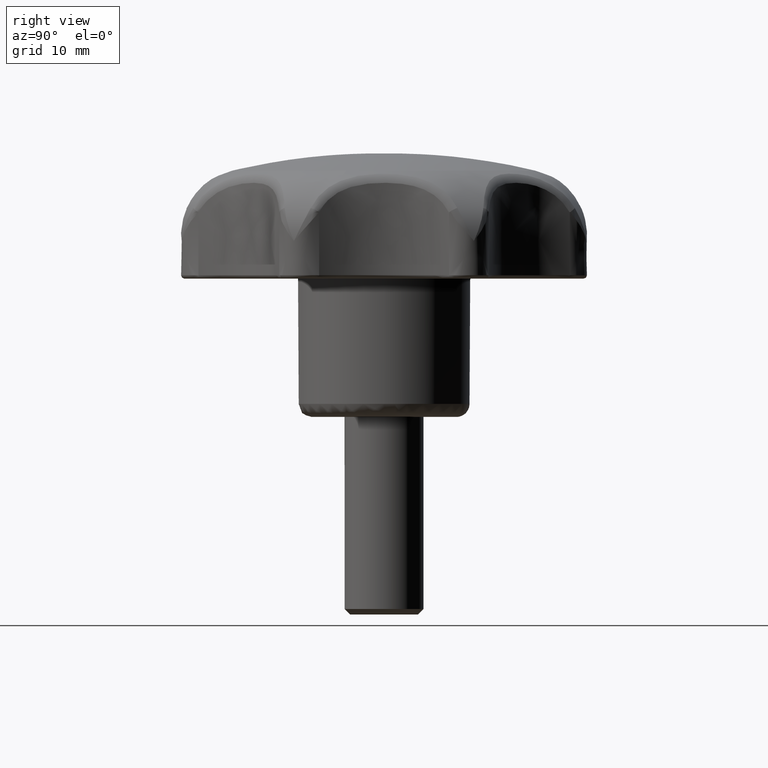
[diagram: clean part render]
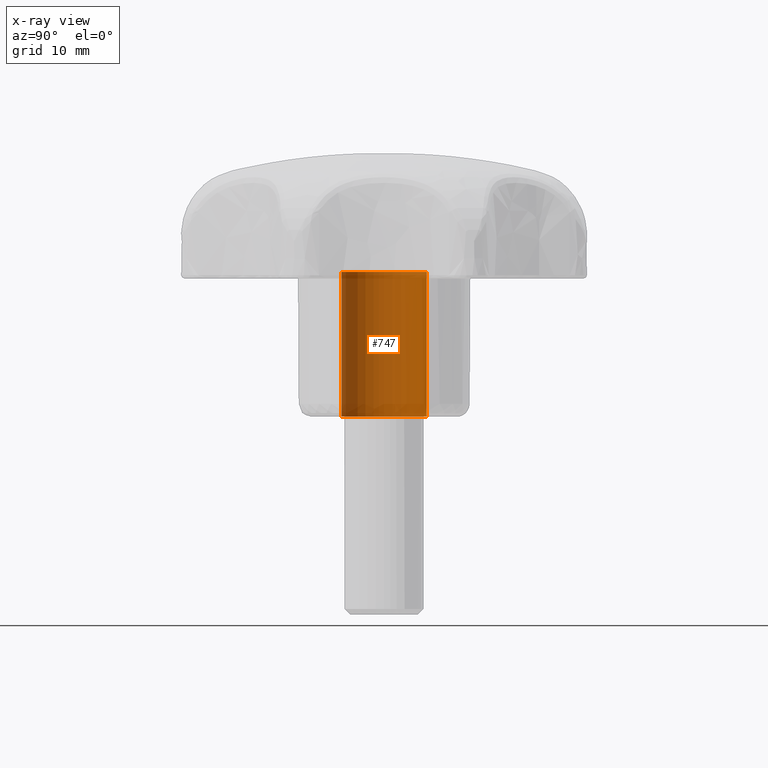
[diagram: x-ray — body ghosted, one internal face saturated and labeled with its STEP entity id]
A machine part, right view, then the same camera in x-ray: the body is ghosted and one INTERNAL B-rep face — a face not visible from any outside direction — is saturated and labeled: STEP entity #747.
In plain terms, the highlighted face is a freeform B-spline surface patch.
Its self-contained STEP definition (entity closure, byte-faithful):
#645=CARTESIAN_POINT('',(0.767222525268930,-6.454561921363831,22.550000000000004));
#646=CARTESIAN_POINT('',(0.582495736146855,-6.476519500415936,22.550000000000004));
#647=CARTESIAN_POINT('',(0.396815506976570,-6.487876189742133,22.550000000000001));
#648=CARTESIAN_POINT('',(-6.091060682765563,-6.884691696718703,22.550000000000004));
#649=CARTESIAN_POINT('',(-6.487876189742133,-0.396815506976570,22.550000000000001));
#650=CARTESIAN_POINT('',(-6.884691696718703,6.091060682765563,22.550000000000004));
#651=CARTESIAN_POINT('',(-0.396815506976570,6.487876189742133,22.550000000000001));
#652=CARTESIAN_POINT('',(0.767222525268930,-6.454561921363831,-0.563749999999999));
#653=CARTESIAN_POINT('',(0.582495736146855,-6.476519500415936,-0.563749999999999));
#654=CARTESIAN_POINT('',(0.396815506976570,-6.487876189742133,-0.563749999999999));
#655=CARTESIAN_POINT('',(-6.091060682765563,-6.884691696718703,-0.563749999999999));
#656=CARTESIAN_POINT('',(-6.487876189742133,-0.396815506976570,-0.563749999999999));
#657=CARTESIAN_POINT('',(-6.884691696718703,6.091060682765563,-0.563749999999999));
#658=CARTESIAN_POINT('',(-0.396815506976570,6.487876189742133,-0.563749999999999));
#666=(BOUNDED_SURFACE()B_SPLINE_SURFACE(2,1,((#645,#652),(#646,#653),(#647,#654),(#648,#655),(#649,#656),(#650,#657),(#651,#658)),.UNSPECIFIED.,.F.,.F.,.U.)B_SPLINE_SURFACE_WITH_KNOTS((3,2,2,3),(2,2),(0.0,0.430782104868019,11.200334726568490,21.969887348268959),(0.0,23.113750000000010),.UNSPECIFIED.)GEOMETRIC_REPRESENTATION_ITEM()RATIONAL_B_SPLINE_SURFACE(((0.977505800795127,0.977505800795127),(0.988284271247462,0.988284271247462),(1.0,1.0),(0.707106781186548,0.707106781186548),(1.0,1.0),(0.707106781186548,0.707106781186548),(1.0,1.0)))REPRESENTATION_ITEM('')SURFACE());
#667=CARTESIAN_POINT('',(0.767222525342051,-6.454561921355140,22.0));
#668=VERTEX_POINT('',#667);
#669=CARTESIAN_POINT('',(-6.500000000000000,0.0,22.0));
#670=VERTEX_POINT('',#669);
#671=CARTESIAN_POINT('',(0.767222525342051,-6.454561921355140,22.0));
#672=CARTESIAN_POINT('',(0.384956777811309,-6.500000000000000,22.0));
#673=CARTESIAN_POINT('',(0.0,-6.500000000000000,22.0));
#674=CARTESIAN_POINT('',(-6.500000000000000,-6.500000000000000,21.999999999999993));
#675=CARTESIAN_POINT('',(-6.500000000000000,0.0,22.0));
#683=(BOUNDED_CURVE()B_SPLINE_CURVE(2,(#671,#672,#673,#674,#675),.UNSPECIFIED.,.F.,.U.)B_SPLINE_CURVE_WITH_KNOTS((3,2,3),(0.229562473511815,0.250000000000000,0.500000000000000),.UNSPECIFIED.)CURVE()GEOMETRIC_REPRESENTATION_ITEM()RATIONAL_B_SPLINE_CURVE((0.956026754180380,0.976055948329161,1.0,0.707106781186547,1.0))REPRESENTATION_ITEM(''));
#684=EDGE_CURVE('',#668,#670,#683,.T.);
#685=ORIENTED_EDGE('',*,*,#684,.F.);
#686=CARTESIAN_POINT('',(0.767222525342051,-6.454561921355140,-3.975200E-016));
#687=VERTEX_POINT('',#686);
#688=CARTESIAN_POINT('',(0.767222525342051,-6.454561921355140,22.0));
#689=CARTESIAN_POINT('',(0.767222525342051,-6.454561921355140,-3.975200E-016));
#690=QUASI_UNIFORM_CURVE('',1,(#688,#689),.UNSPECIFIED.,.F.,.U.);
#691=EDGE_CURVE('',#668,#687,#690,.T.);
#692=ORIENTED_EDGE('',*,*,#691,.T.);
#693=CARTESIAN_POINT('',(-6.500000000000000,0.0,0.0));
#694=VERTEX_POINT('',#693);
#695=CARTESIAN_POINT('',(0.767222525342051,-6.454561921355140,-3.975200E-016));
#696=CARTESIAN_POINT('',(0.384956777811309,-6.500000000000000,0.0));
#697=CARTESIAN_POINT('',(0.0,-6.500000000000000,0.0));
#698=CARTESIAN_POINT('',(-6.500000000000000,-6.500000000000000,0.0));
#699=CARTESIAN_POINT('',(-6.500000000000000,0.0,0.0));
#707=(BOUNDED_CURVE()B_SPLINE_CURVE(2,(#695,#696,#697,#698,#699),.UNSPECIFIED.,.F.,.U.)B_SPLINE_CURVE_WITH_KNOTS((3,2,3),(0.229562473511815,0.250000000000000,0.500000000000000),.UNSPECIFIED.)CURVE()GEOMETRIC_REPRESENTATION_ITEM()RATIONAL_B_SPLINE_CURVE((0.956026754180380,0.976055948329161,1.0,0.707106781186547,1.0))REPRESENTATION_ITEM(''));
#708=EDGE_CURVE('',#687,#694,#707,.T.);
#709=ORIENTED_EDGE('',*,*,#708,.T.);
#710=CARTESIAN_POINT('',(-0.396814562002679,6.487876247539075,-4.440892E-016));
#711=VERTEX_POINT('',#710);
#712=CARTESIAN_POINT('',(-6.500000000000000,0.0,0.0));
#713=CARTESIAN_POINT('',(-6.500000000000000,6.114591219423420,0.0));
#714=CARTESIAN_POINT('',(-0.396814562002679,6.487876247539075,-4.440892E-016));
#722=(BOUNDED_CURVE()B_SPLINE_CURVE(2,(#712,#713,#714),.UNSPECIFIED.,.F.,.U.)B_SPLINE_CURVE_WITH_KNOTS((3,3),(0.500000000000000,0.739333012505634),.UNSPECIFIED.)CURVE()GEOMETRIC_REPRESENTATION_ITEM()RATIONAL_B_SPLINE_CURVE((1.0,0.719603934395619,0.976072149397828))REPRESENTATION_ITEM(''));
#723=EDGE_CURVE('',#694,#711,#722,.T.);
#724=ORIENTED_EDGE('',*,*,#723,.T.);
#725=CARTESIAN_POINT('',(-0.396814550504992,6.487876248242301,22.0));
#726=VERTEX_POINT('',#725);
#727=CARTESIAN_POINT('',(-0.396814550504992,6.487876248242301,22.0));
#728=CARTESIAN_POINT('',(-0.396814562002679,6.487876247539075,-4.440892E-016));
#729=QUASI_UNIFORM_CURVE('',1,(#727,#728),.UNSPECIFIED.,.F.,.U.);
#730=EDGE_CURVE('',#726,#711,#729,.T.);
#731=ORIENTED_EDGE('',*,*,#730,.F.);
#732=CARTESIAN_POINT('',(-6.500000000000000,0.0,22.0));
#733=CARTESIAN_POINT('',(-6.500000000000000,6.114591241136251,21.999999999999993));
#734=CARTESIAN_POINT('',(-0.396814550504992,6.487876248242302,22.000000000000004));
#742=(BOUNDED_CURVE()B_SPLINE_CURVE(2,(#732,#733,#734),.UNSPECIFIED.,.F.,.U.)B_SPLINE_CURVE_WITH_KNOTS((3,3),(0.500000000000000,0.739333013117202),.UNSPECIFIED.)CURVE()GEOMETRIC_REPRESENTATION_ITEM()RATIONAL_B_SPLINE_CURVE((1.0,0.719603933679122,0.976072150708537))REPRESENTATION_ITEM(''));
#743=EDGE_CURVE('',#670,#726,#742,.T.);
#744=ORIENTED_EDGE('',*,*,#743,.F.);
#745=EDGE_LOOP('',(#685,#692,#709,#724,#731,#744));
#746=FACE_OUTER_BOUND('',#745,.T.);
#747=ADVANCED_FACE('',(#746),#666,.F.);